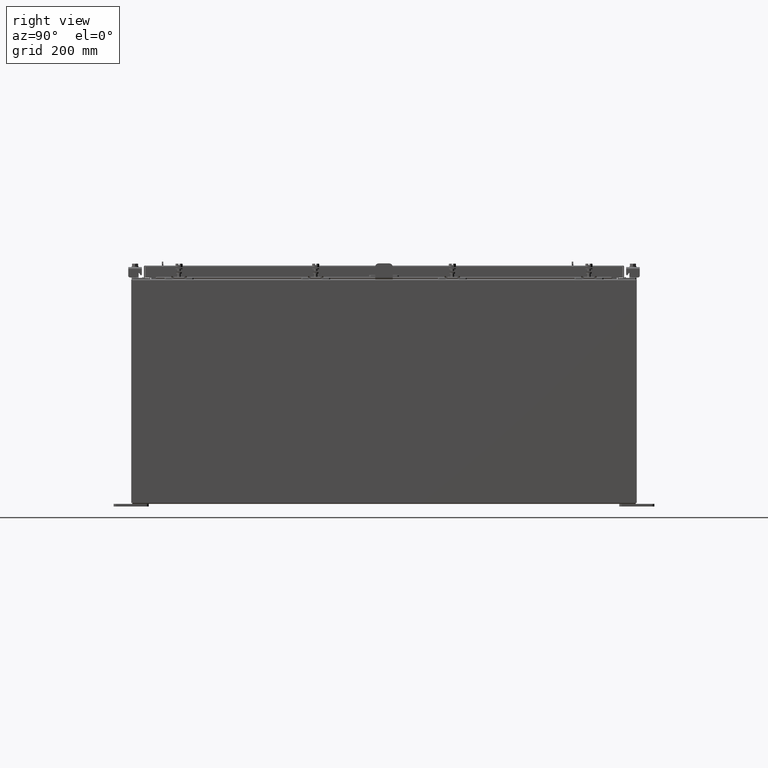
[diagram: clean part render]
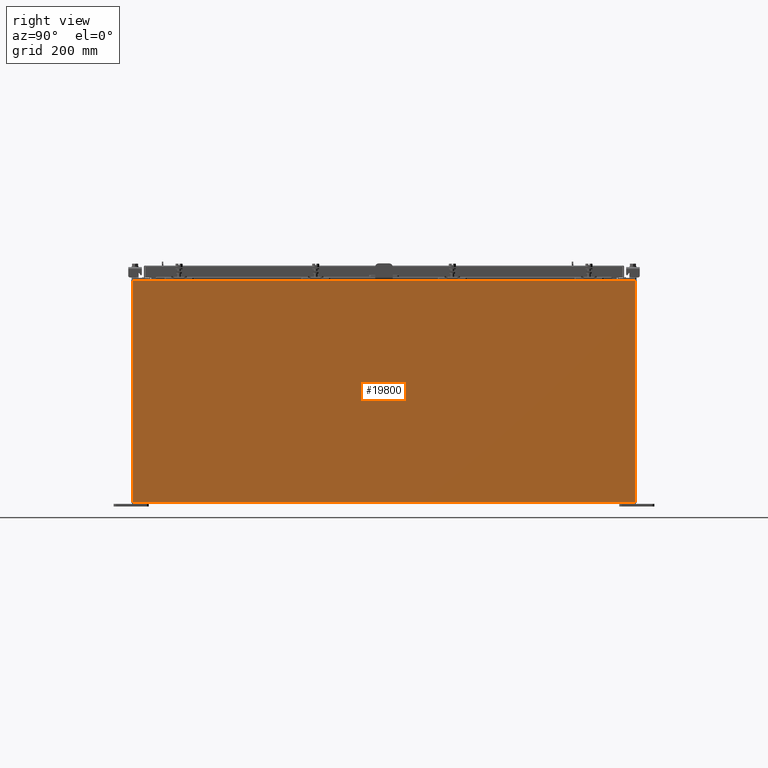
[diagram: same view with one face highlighted and labeled with its STEP entity id]
A machine part, right view. The second image highlights one B-rep face of the part: STEP entity #19800.
In plain terms, the highlighted planar face has unit normal (-1, 0, 0).
Its self-contained STEP definition (entity closure, byte-faithful):
#260 = DIRECTION ( 'NONE',  ( -0.0000000000000000000, -1.000000000000000000, -0.0000000000000000000 ) ) ;
#1552 = VERTEX_POINT ( 'NONE', #22248 ) ;
#1902 = FACE_OUTER_BOUND ( 'NONE', #3176, .T. ) ;
#2235 = EDGE_CURVE ( 'NONE', #23771, #1552, #20070, .T. ) ;
#2293 = VECTOR ( 'NONE', #22435, 39.37007874015748100 ) ;
#3058 = VERTEX_POINT ( 'NONE', #18639 ) ;
#3176 = EDGE_LOOP ( 'NONE', ( #10656, #20857, #22384, #17974 ) ) ;
#3483 = LINE ( 'NONE', #3506, #2293 ) ;
#3506 = CARTESIAN_POINT ( 'NONE',  ( 14.99999999999999800, -17.92530000000000000, -5.172322868739428200E-014 ) ) ;
#4125 = PLANE ( 'NONE',  #8336 ) ;
#4943 = EDGE_CURVE ( 'NONE', #13138, #3058, #20682, .T. ) ;
#5591 = VECTOR ( 'NONE', #260, 39.37007874015748100 ) ;
#5769 = CARTESIAN_POINT ( 'NONE',  ( 14.99999999999999800, 17.92530000000000000, -4.926328407896216100E-014 ) ) ;
#8336 = AXIS2_PLACEMENT_3D ( 'NONE', #15464, #23379, #12079 ) ;
#9285 = DIRECTION ( 'NONE',  ( 2.091457255054409500E-031, -1.000000000000000000, 6.096072018129156600E-017 ) ) ;
#10656 = ORIENTED_EDGE ( 'NONE', *, *, #4943, .T. ) ;
#12079 = DIRECTION ( 'NONE',  ( 3.430827668758846700E-015, 0.0000000000000000000, 1.000000000000000000 ) ) ;
#13138 = VERTEX_POINT ( 'NONE', #23064 ) ;
#15334 = CARTESIAN_POINT ( 'NONE',  ( 15.00000000000005300, 17.92530000000000000, 15.83759999999998600 ) ) ;
#15464 = CARTESIAN_POINT ( 'NONE',  ( 14.99999999999999800, 0.0000000000000000000, -5.172322868739428200E-014 ) ) ;
#17124 = EDGE_CURVE ( 'NONE', #3058, #1552, #3483, .T. ) ;
#17974 = ORIENTED_EDGE ( 'NONE', *, *, #24435, .T. ) ;
#18639 = CARTESIAN_POINT ( 'NONE',  ( 15.00000000000005300, -17.92530000000000000, 15.83760000000000000 ) ) ;
#19021 = DIRECTION ( 'NONE',  ( 3.430827668758847500E-015, -1.372331067503538800E-016, 1.000000000000000000 ) ) ;
#19776 = LINE ( 'NONE', #5769, #20363 ) ;
#19800 = ADVANCED_FACE ( 'NONE', ( #1902 ), #4125, .F. ) ;
#20070 = LINE ( 'NONE', #24393, #24482 ) ;
#20363 = VECTOR ( 'NONE', #19021, 39.37007874015748100 ) ;
#20682 = LINE ( 'NONE', #15334, #5591 ) ;
#20773 = CARTESIAN_POINT ( 'NONE',  ( 14.99999999999999800, 17.92530000000000000, 0.01299999999999766100 ) ) ;
#20857 = ORIENTED_EDGE ( 'NONE', *, *, #17124, .T. ) ;
#22248 = CARTESIAN_POINT ( 'NONE',  ( 14.99999999999999800, -17.92530000000000000, 0.01300000000000023200 ) ) ;
#22384 = ORIENTED_EDGE ( 'NONE', *, *, #2235, .F. ) ;
#22435 = DIRECTION ( 'NONE',  ( -3.430827668758847500E-015, 0.0000000000000000000, -1.000000000000000000 ) ) ;
#23064 = CARTESIAN_POINT ( 'NONE',  ( 15.00000000000005300, 17.92530000000000000, 15.83759999999998600 ) ) ;
#23379 = DIRECTION ( 'NONE',  ( -1.000000000000000000, 0.0000000000000000000, 3.430827668758846700E-015 ) ) ;
#23771 = VERTEX_POINT ( 'NONE', #20773 ) ;
#24393 = CARTESIAN_POINT ( 'NONE',  ( 14.99999999999999800, -17.92530000000000000, 0.01299999999999984700 ) ) ;
#24435 = EDGE_CURVE ( 'NONE', #23771, #13138, #19776, .T. ) ;
#24482 = VECTOR ( 'NONE', #9285, 39.37007874015748100 ) ;